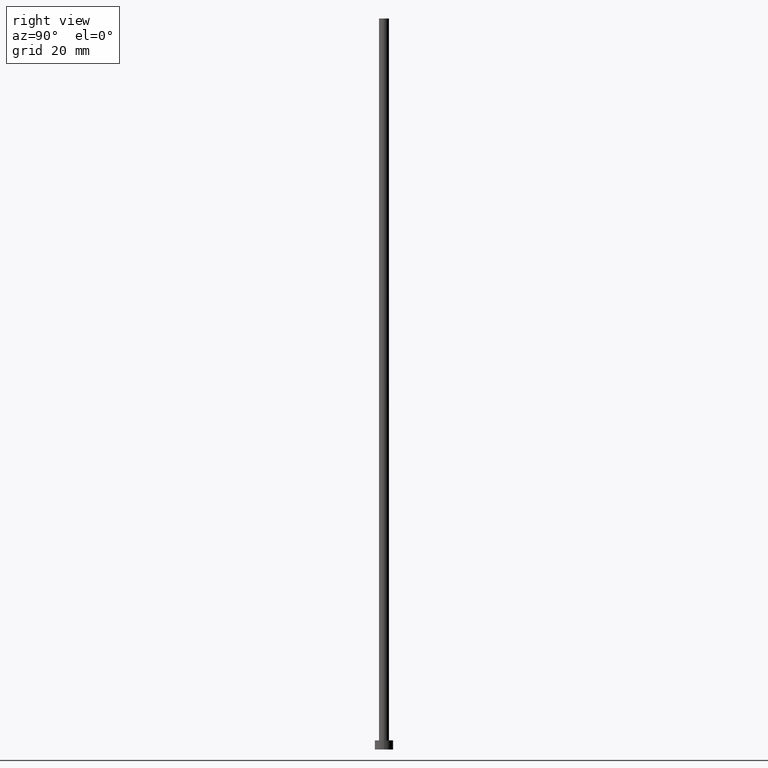
[diagram: clean part render]
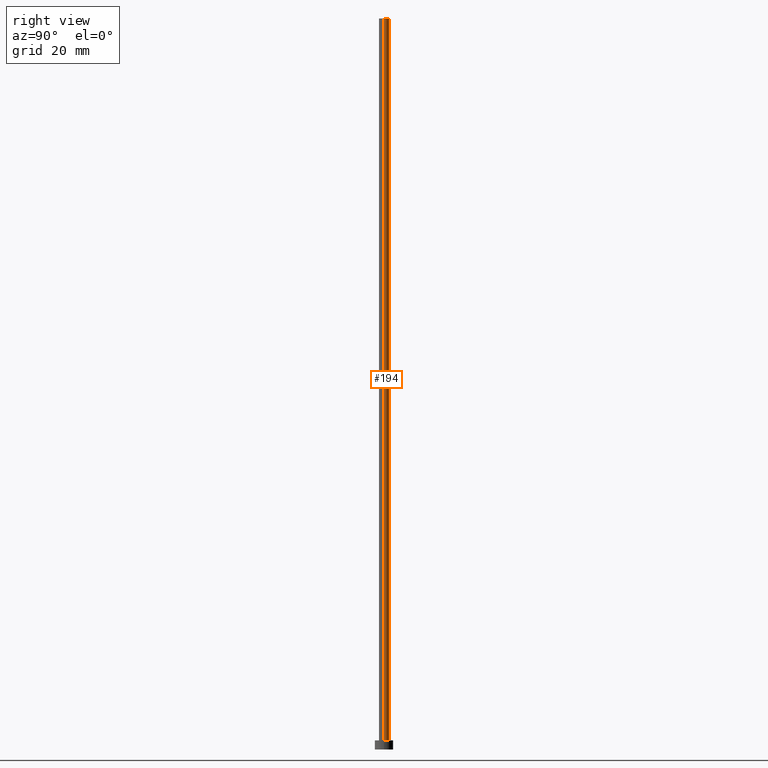
[diagram: same view with one face highlighted and labeled with its STEP entity id]
A machine part, right view. The second image highlights one B-rep face of the part: STEP entity #194.
In plain terms, the highlighted cylindrical surface (edge-blend (fillet) strip) has radius 1.1 mm, axis along (-0, -0, -1).
Its self-contained STEP definition (entity closure, byte-faithful):
#4 = ORIENTED_EDGE ( 'NONE', *, *, #163, .T. ) ;
#12 = CARTESIAN_POINT ( 'NONE',  ( 0.000000000000000000, 0.000000000000000000, 160.0000000000000000 ) ) ;
#15 = FACE_OUTER_BOUND ( 'NONE', #77, .T. ) ;
#28 = EDGE_CURVE ( 'NONE', #255, #41, #177, .T. ) ;
#31 = CARTESIAN_POINT ( 'NONE',  ( -1.100000000000000089, 0.000000000000000000, 2.000000000000000000 ) ) ;
#34 = DIRECTION ( 'NONE',  ( -0.000000000000000000, -0.000000000000000000, -1.000000000000000000 ) ) ;
#39 = EDGE_CURVE ( 'NONE', #41, #64, #66, .T. ) ;
#41 = VERTEX_POINT ( 'NONE', #86 ) ;
#43 = DIRECTION ( 'NONE',  ( 0.000000000000000000, 0.000000000000000000, 1.000000000000000000 ) ) ;
#52 = DIRECTION ( 'NONE',  ( 1.000000000000000000, 0.000000000000000000, 0.000000000000000000 ) ) ;
#57 = AXIS2_PLACEMENT_3D ( 'NONE', #12, #43, #217 ) ;
#59 = ORIENTED_EDGE ( 'NONE', *, *, #39, .F. ) ;
#64 = VERTEX_POINT ( 'NONE', #31 ) ;
#66 = LINE ( 'NONE', #148, #158 ) ;
#70 = CARTESIAN_POINT ( 'NONE',  ( 0.000000000000000000, 0.000000000000000000, 2.000000000000000000 ) ) ;
#77 = EDGE_LOOP ( 'NONE', ( #216, #4, #239, #59 ) ) ;
#82 = VECTOR ( 'NONE', #225, 1000.000000000000000 ) ;
#86 = CARTESIAN_POINT ( 'NONE',  ( -1.100000000000000089, 0.000000000000000000, 160.0000000000000000 ) ) ;
#89 = CARTESIAN_POINT ( 'NONE',  ( 0.000000000000000000, 0.000000000000000000, 160.0000000000000000 ) ) ;
#102 = DIRECTION ( 'NONE',  ( -0.000000000000000000, -0.000000000000000000, -1.000000000000000000 ) ) ;
#107 = CYLINDRICAL_SURFACE ( 'NONE', #235, 1.100000000000000089 ) ;
#126 = LINE ( 'NONE', #207, #82 ) ;
#128 = CARTESIAN_POINT ( 'NONE',  ( 1.100000000000000089, 1.347111479062088503E-16, 2.000000000000000000 ) ) ;
#132 = DIRECTION ( 'NONE',  ( -1.000000000000000000, 0.000000000000000000, 0.000000000000000000 ) ) ;
#148 = CARTESIAN_POINT ( 'NONE',  ( -1.100000000000000089, 0.000000000000000000, 160.0000000000000000 ) ) ;
#152 = CIRCLE ( 'NONE', #184, 1.100000000000000089 ) ;
#158 = VECTOR ( 'NONE', #102, 1000.000000000000000 ) ;
#163 = EDGE_CURVE ( 'NONE', #255, #186, #126, .T. ) ;
#172 = EDGE_CURVE ( 'NONE', #186, #64, #152, .T. ) ;
#177 = CIRCLE ( 'NONE', #57, 1.100000000000000089 ) ;
#184 = AXIS2_PLACEMENT_3D ( 'NONE', #70, #210, #52 ) ;
#186 = VERTEX_POINT ( 'NONE', #128 ) ;
#190 = CARTESIAN_POINT ( 'NONE',  ( 1.100000000000000089, 1.347111479062088503E-16, 160.0000000000000000 ) ) ;
#194 = ADVANCED_FACE ( 'NONE', ( #15 ), #107, .T. ) ;
#207 = CARTESIAN_POINT ( 'NONE',  ( 1.100000000000000089, 1.347111479062088503E-16, 160.0000000000000000 ) ) ;
#210 = DIRECTION ( 'NONE',  ( 0.000000000000000000, 0.000000000000000000, 1.000000000000000000 ) ) ;
#216 = ORIENTED_EDGE ( 'NONE', *, *, #28, .F. ) ;
#217 = DIRECTION ( 'NONE',  ( 1.000000000000000000, 0.000000000000000000, 0.000000000000000000 ) ) ;
#225 = DIRECTION ( 'NONE',  ( -0.000000000000000000, -0.000000000000000000, -1.000000000000000000 ) ) ;
#235 = AXIS2_PLACEMENT_3D ( 'NONE', #89, #34, #132 ) ;
#239 = ORIENTED_EDGE ( 'NONE', *, *, #172, .T. ) ;
#255 = VERTEX_POINT ( 'NONE', #190 ) ;